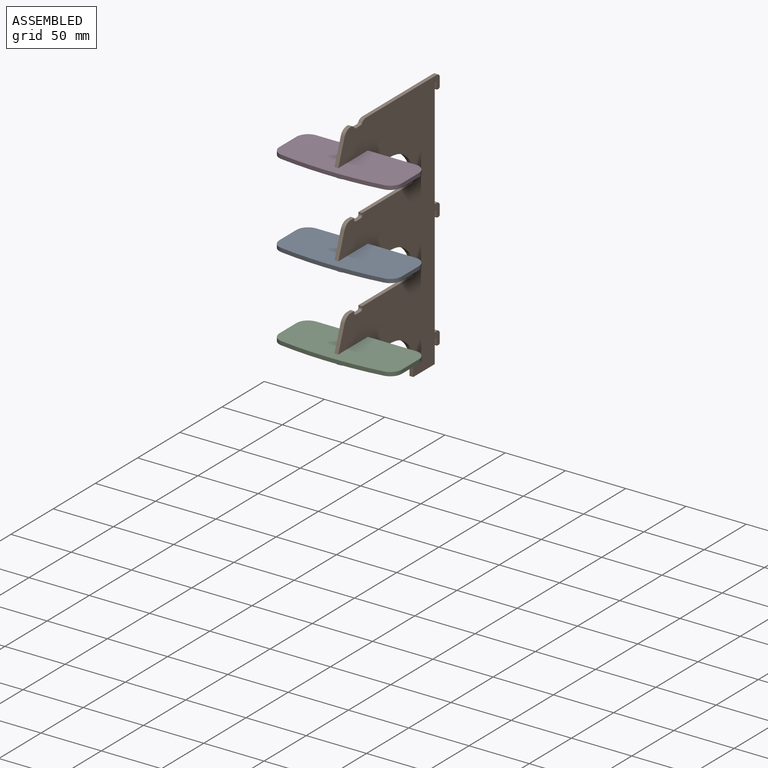
[diagram: assembled view]
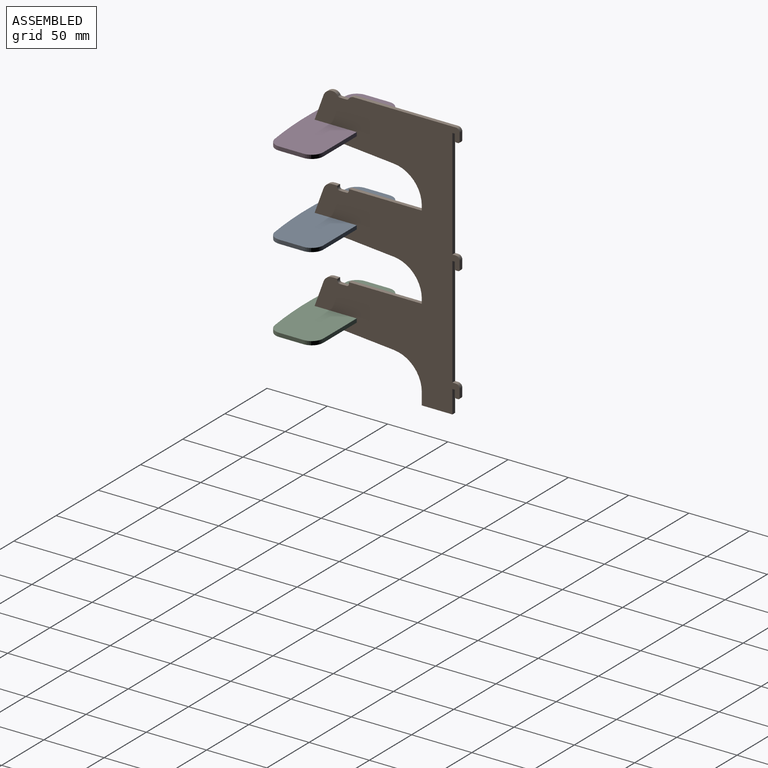
[diagram: assembled view, second angle]
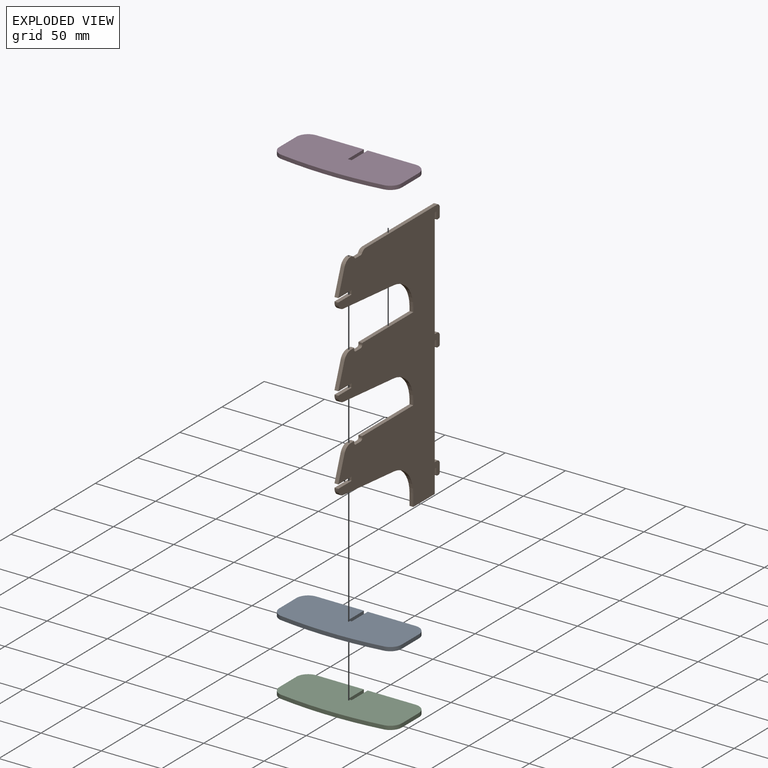
[diagram: exploded view]
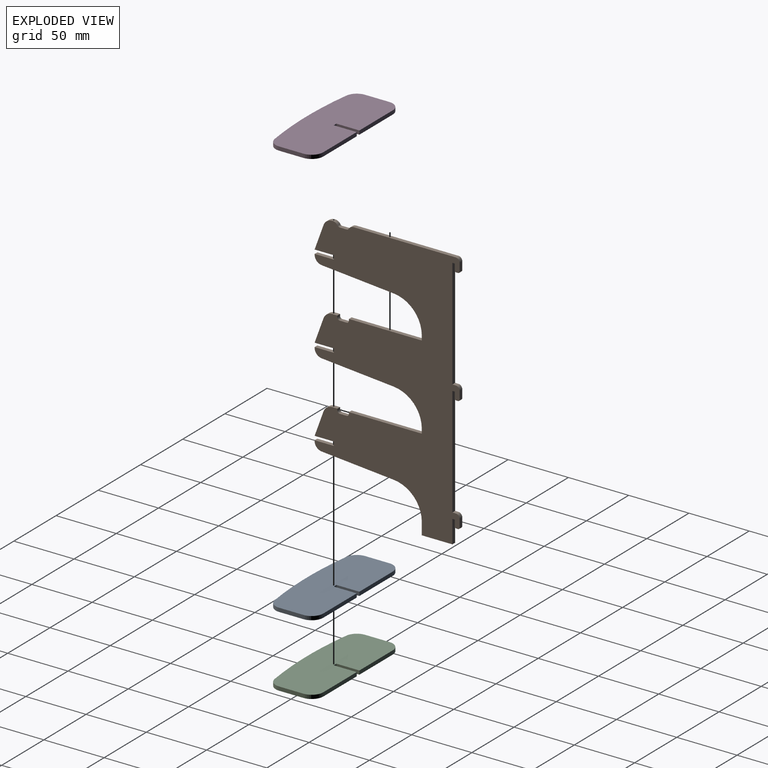
[diagram: exploded view, second angle]
ASSEMBLY  parts=4 mates=3
PART A: 14 faces, bbox 101.6x42.4x3.2 mm
  f0: plane 19.05x3.18mm, normal (-1,0,0), area 60.5mm2, adj f1,f7,f8,f9
  f1: plane 3.18x3.18mm, normal (0,1,0), area 10.1mm2, adj f0,f2,f8,f9
  f2: plane 19.05x3.18mm, normal (1,0,0), area 60.5mm2, adj f1,f3,f8,f9
  f3: plane 39.56x3.18mm, normal (0,1,0), area 125.6mm2, adj f2,f8,f9,f10
  f4: plane 20.18x3.18mm, normal (-1,0,0), area 64.1mm2, adj f8,f9,f10,f11
  f5: cylinder r=304.8mm len=84.99mm, axis (0,0,-1), area 270.7mm2, adj f8,f9,f11,f12
  f6: plane 20.18x3.18mm, normal (1,0,0), area 64.1mm2, adj f8,f9,f12,f13
  f7: plane 39.56x3.18mm, normal (0,1,0), area 125.6mm2, adj f0,f8,f9,f13
  f8: plane 101.6x42.36mm, normal (0,0,1), area 4031.7mm2, adj f0,f1,f2,f3,f4,f5,f6,f7
  f9: plane 101.6x42.36mm, normal (0,0,-1), area 4031.7mm2, adj f0,f1,f2,f3,f4,f5,f6,f7
  f10: cylinder r=9.65mm len=9.65mm, axis (0,0,1), area 48.1mm2, adj f3,f4,f8,f9
  f11: cylinder r=9.65mm len=9.56mm, axis (0,0,-1), area 43.9mm2, adj f4,f5,f8,f9
  f12: cylinder r=9.65mm len=9.56mm, axis (0,0,-1), area 43.9mm2, adj f5,f6,f8,f9
  f13: cylinder r=9.65mm len=9.65mm, axis (0,0,-1), area 48.1mm2, adj f6,f7,f8,f9
PART B: 80 faces, bbox 3.2x120.3x215.9 mm
  f0: plane 91.17x3.18mm, normal (0,1,0), area 289.5mm2, adj f14,f15,f68,f75
  f1: plane 91.17x3.18mm, normal (0,1,0), area 289.5mm2, adj f14,f15,f60,f67
  f2: plane 3.75x3.18mm, normal (0,-1,0), area 11.9mm2, adj f5,f14,f15,f26
  f3: plane 3.18x0.53mm, normal (0,-1,0), area 1.7mm2, adj f13,f14,f15,f21
  f4: plane 59.92x5.24mm, normal (0,-0.09,-1), area 191mm2, adj f5,f14,f15,f21
  f5: cylinder r=25.4mm len=25.3mm, axis (-1,0,0), area 119.6mm2, adj f2,f4,f14,f15
  f6: plane 19.07x3.18mm, normal (0,1,0), area 60.6mm2, adj f14,f15,f43,f76
  f7: plane 84.64x3.18mm, normal (0,0,1), area 268.7mm2, adj f14,f15,f18,f61
  f8: plane 5.72x3.18mm, normal (0,0,1), area 18.1mm2, adj f14,f15,f16,f17
  f9: plane 3.18x0.22mm, normal (0,0,1), area 0.7mm2, adj f14,f15,f19,f20
  f10: plane 20.33x7.4mm, normal (0,-0.94,0.34), area 68.7mm2, adj f11,f14,f15,f20
  f11: plane 15.88x3.18mm, normal (0,0,-1), area 50.4mm2, adj f10,f12,f14,f15
  f12: plane 3.3x3.18mm, normal (0,-1,0), area 10.5mm2, adj f11,f13,f14,f15
  f13: plane 15.88x3.18mm, normal (0,0,1), area 50.4mm2, adj f3,f12,f14,f15
  f14: plane 215.9x120.27mm, normal (1,0,0), area 15721.4mm2, adj f0,f1,f2,f3,f4,f5,f6,f7
  f15: plane 215.9x120.27mm, normal (-1,0,0), area 15721.4mm2, adj f0,f1,f2,f3,f4,f5,f6,f7
  f16: cylinder r=1.91mm len=3.18mm, axis (-1,0,0), area 6.1mm2, adj f8,f14,f15,f18
  f17: cylinder r=1.91mm len=3.18mm, axis (1,0,0), area 6.1mm2, adj f8,f14,f15,f19
  f18: cylinder r=5.08mm len=4.32mm, axis (-1,0,0), area 16.4mm2, adj f7,f14,f15,f16
  f19: cylinder r=5.08mm len=4.32mm, axis (1,0,0), area 16.4mm2, adj f9,f14,f15,f17
  f20: cylinder r=7.71mm len=7.24mm, axis (1,0,0), area 29.9mm2, adj f9,f10,f14,f15
  f21: cylinder r=6.35mm len=6.33mm, axis (-1,0,0), area 29.9mm2, adj f3,f4,f14,f15
  f22: plane 3.75x3.18mm, normal (0,-1,0), area 11.9mm2, adj f14,f15,f25,f44
  f23: plane 3.18x0.53mm, normal (0,-1,0), area 1.7mm2, adj f14,f15,f34,f38
  f24: plane 59.92x5.24mm, normal (0,-0.09,-1), area 191mm2, adj f14,f15,f25,f38
  f25: cylinder r=25.4mm len=25.3mm, axis (-1,0,0), area 119.6mm2, adj f14,f15,f22,f24
  f26: plane 60.48x3.18mm, normal (0,0,1), area 192mm2, adj f2,f14,f15,f27
  f27: plane 3.18x1.4mm, normal (0,-1,0), area 4.4mm2, adj f14,f15,f26,f35
  f28: plane 5.72x3.18mm, normal (0,0,1), area 18.1mm2, adj f14,f15,f35,f36
  f29: plane 3.18x1.4mm, normal (0,1,0), area 4.4mm2, adj f14,f15,f30,f36
  f30: plane 4.25x3.18mm, normal (0,0,1), area 13.5mm2, adj f14,f15,f29,f37
  f31: plane 20.33x7.4mm, normal (0,-0.94,0.34), area 68.7mm2, adj f14,f15,f32,f37
  f32: plane 15.88x3.18mm, normal (0,0,-1), area 50.4mm2, adj f14,f15,f31,f33
  f33: plane 3.3x3.18mm, normal (0,-1,0), area 10.5mm2, adj f14,f15,f32,f34
  f34: plane 15.88x3.18mm, normal (0,0,1), area 50.4mm2, adj f14,f15,f23,f33
  f35: cylinder r=1.91mm len=3.18mm, axis (-1,0,0), area 9.5mm2, adj f14,f15,f27,f28
  f36: cylinder r=1.91mm len=3.18mm, axis (1,0,0), area 9.5mm2, adj f14,f15,f28,f29
  f37: cylinder r=7.71mm len=7.24mm, axis (1,0,0), area 29.9mm2, adj f14,f15,f30,f31
  f38: cylinder r=6.35mm len=6.33mm, axis (-1,0,0), area 29.9mm2, adj f14,f15,f23,f24
  f39: plane 3.18x0.53mm, normal (0,-1,0), area 1.7mm2, adj f14,f15,f52,f56
  f40: plane 59.92x5.24mm, normal (0,-0.09,-1), area 191mm2, adj f14,f15,f41,f56
  f41: cylinder r=25.4mm len=25.3mm, axis (-1,0,0), area 119.6mm2, adj f14,f15,f40,f42
  f42: plane 10.1x3.18mm, normal (0,-1,0), area 32.1mm2, adj f14,f15,f41,f43
  f43: plane 25.4x3.18mm, normal (0,0,-1), area 80.6mm2, adj f6,f14,f15,f42
  f44: plane 60.48x3.18mm, normal (0,0,1), area 192mm2, adj f14,f15,f22,f45
  f45: plane 3.18x1.4mm, normal (0,-1,0), area 4.4mm2, adj f14,f15,f44,f53
  f46: plane 5.72x3.18mm, normal (0,0,1), area 18.1mm2, adj f14,f15,f53,f54
  f47: plane 3.18x1.4mm, normal (0,1,0), area 4.4mm2, adj f14,f15,f48,f54
  f48: plane 4.25x3.18mm, normal (0,0,1), area 13.5mm2, adj f14,f15,f47,f55
  f49: plane 20.33x7.4mm, normal (0,-0.94,0.34), area 68.7mm2, adj f14,f15,f50,f55
  f50: plane 15.88x3.18mm, normal (0,0,-1), area 50.4mm2, adj f14,f15,f49,f51
  f51: plane 3.3x3.18mm, normal (0,-1,0), area 10.5mm2, adj f14,f15,f50,f52
  f52: plane 15.88x3.18mm, normal (0,0,1), area 50.4mm2, adj f14,f15,f39,f51
  f53: cylinder r=1.91mm len=3.18mm, axis (-1,0,0), area 9.5mm2, adj f14,f15,f45,f46
  f54: cylinder r=1.91mm len=3.18mm, axis (1,0,0), area 9.5mm2, adj f14,f15,f46,f47
  f55: cylinder r=7.71mm len=7.24mm, axis (1,0,0), area 29.9mm2, adj f14,f15,f48,f49
  f56: cylinder r=6.35mm len=6.33mm, axis (-1,0,0), area 29.9mm2, adj f14,f15,f39,f40
  f57: plane 5.08x3.18mm, normal (0,-1,0), area 16.1mm2, adj f14,f15,f60,f62
  f58: plane 3.18x1.52mm, normal (0,0,-1), area 4.8mm2, adj f14,f15,f62,f63
  f59: plane 6.73x3.18mm, normal (0,1,0), area 21.4mm2, adj f14,f15,f61,f63
  f60: plane 3.18x1.91mm, normal (0,0,-1), area 6mm2, adj f1,f14,f15,f57
  f61: cylinder r=3.17mm len=3.18mm, axis (1,0,0), area 15.8mm2, adj f7,f14,f15,f59
  f62: cylinder r=1.27mm len=3.18mm, axis (1,0,0), area 6.3mm2, adj f14,f15,f57,f58
  f63: cylinder r=1.27mm len=3.18mm, axis (1,0,0), area 6.3mm2, adj f14,f15,f58,f59
  f64: plane 5.08x3.18mm, normal (0,-1,0), area 16.1mm2, adj f14,f15,f68,f70
  f65: plane 3.18x1.52mm, normal (0,0,-1), area 4.8mm2, adj f14,f15,f70,f71
  f66: plane 6.73x3.18mm, normal (0,1,0), area 21.4mm2, adj f14,f15,f69,f71
  f67: plane 3.18x2.79mm, normal (0,0,1), area 8.9mm2, adj f1,f14,f15,f69
  f68: plane 3.18x1.91mm, normal (0,0,-1), area 6mm2, adj f0,f14,f15,f64
  f69: cylinder r=3.17mm len=3.18mm, axis (-1,0,0), area 15.8mm2, adj f14,f15,f66,f67
  f70: cylinder r=1.27mm len=3.18mm, axis (1,0,0), area 6.3mm2, adj f14,f15,f64,f65
  f71: cylinder r=1.27mm len=3.18mm, axis (1,0,0), area 6.3mm2, adj f14,f15,f65,f66
  f72: plane 5.08x3.18mm, normal (0,-1,0), area 16.1mm2, adj f14,f15,f76,f78
  f73: plane 3.18x1.52mm, normal (0,0,-1), area 4.8mm2, adj f14,f15,f78,f79
  f74: plane 6.73x3.18mm, normal (0,1,0), area 21.4mm2, adj f14,f15,f77,f79
  f75: plane 3.18x2.79mm, normal (0,0,1), area 8.9mm2, adj f0,f14,f15,f77
  f76: plane 3.18x1.91mm, normal (0,0,-1), area 6mm2, adj f6,f14,f15,f72
  f77: cylinder r=3.17mm len=3.18mm, axis (-1,0,0), area 15.8mm2, adj f14,f15,f74,f75
  f78: cylinder r=1.27mm len=3.18mm, axis (1,0,0), area 6.3mm2, adj f14,f15,f72,f73
  f79: cylinder r=1.27mm len=3.18mm, axis (1,0,0), area 6.3mm2, adj f14,f15,f73,f74
PART C: same geometry as A
PART D: same geometry as A
PLACE A t=(0,0,-69.72)mm
PLACE B at identity fixed
PLACE C t=(0,0,-139.57)mm
PLACE D t=(0,0,0.13)mm
MATE fastened B.f50 <-> C.f8  axis (0,0,-1) through (1.59,-98.43,-165.1)mm
MATE fastened B.f11 <-> D.f8  axis (0,0,-1) through (1.59,-98.43,-25.4)mm
MATE fastened B.f32 <-> A.f8  axis (0,0,-1) through (1.59,-98.43,-95.25)mm
